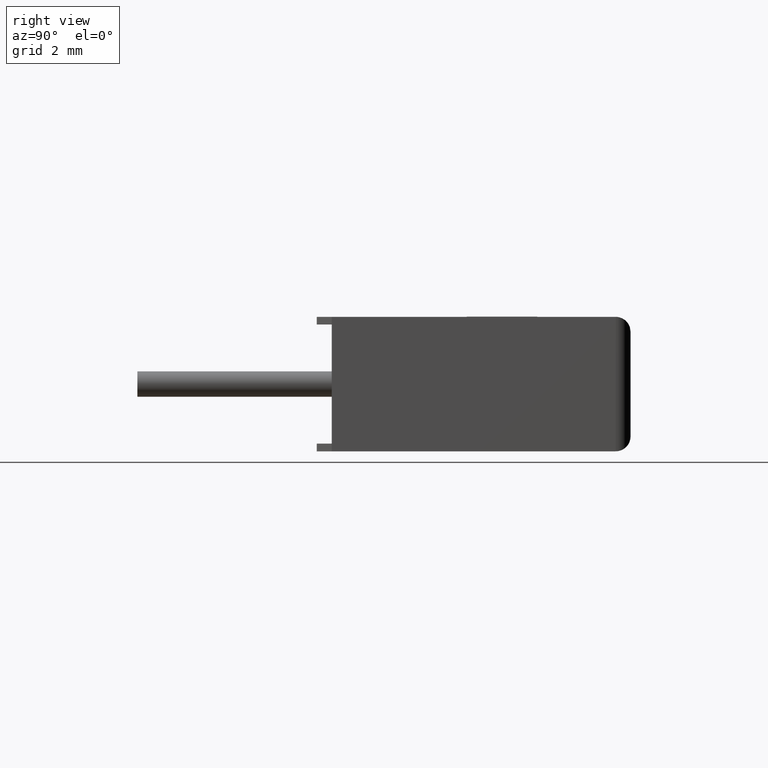
[diagram: clean part render]
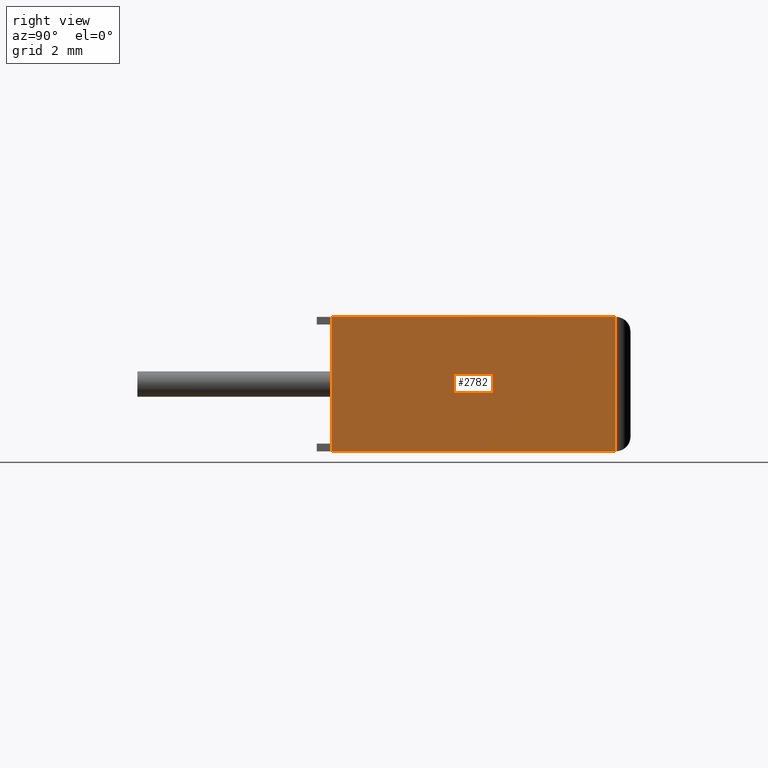
[diagram: same view with one face highlighted and labeled with its STEP entity id]
A machine part, right view. The second image highlights one B-rep face of the part: STEP entity #2782.
In plain terms, the highlighted planar face has unit normal (-1, 0, 0).
Its self-contained STEP definition (entity closure, byte-faithful):
#49 = ORIENTED_EDGE ( 'NONE', *, *, #1055, .T. ) ;
#341 = EDGE_CURVE ( 'NONE', #3063, #835, #1257, .T. ) ;
#835 = VERTEX_POINT ( 'NONE', #1243 ) ;
#851 = CARTESIAN_POINT ( 'NONE',  ( 17.50000000000000000, 0.0000000000000000000, 0.0000000000000000000 ) ) ;
#984 = LINE ( 'NONE', #2565, #3060 ) ;
#1001 = PLANE ( 'NONE',  #3171 ) ;
#1055 = EDGE_CURVE ( 'NONE', #2070, #3063, #984, .T. ) ;
#1085 = FACE_OUTER_BOUND ( 'NONE', #2307, .T. ) ;
#1107 = CARTESIAN_POINT ( 'NONE',  ( 17.50000000000000000, 0.0000000000000000000, 4.500000000000000000 ) ) ;
#1163 = LINE ( 'NONE', #1659, #2217 ) ;
#1243 = CARTESIAN_POINT ( 'NONE',  ( 17.50000000000000000, 9.500000000000000000, 4.500000000000000000 ) ) ;
#1257 = LINE ( 'NONE', #2222, #2525 ) ;
#1520 = VERTEX_POINT ( 'NONE', #1107 ) ;
#1659 = CARTESIAN_POINT ( 'NONE',  ( 17.50000000000000000, 0.0000000000000000000, 4.500000000000000000 ) ) ;
#2070 = VERTEX_POINT ( 'NONE', #851 ) ;
#2086 = DIRECTION ( 'NONE',  ( 0.0000000000000000000, 1.000000000000000000, 0.0000000000000000000 ) ) ;
#2101 = CARTESIAN_POINT ( 'NONE',  ( 17.50000000000000000, 0.0000000000000000000, 4.500000000000000000 ) ) ;
#2148 = ORIENTED_EDGE ( 'NONE', *, *, #3099, .T. ) ;
#2217 = VECTOR ( 'NONE', #2395, 1000.000000000000000 ) ;
#2222 = CARTESIAN_POINT ( 'NONE',  ( 17.50000000000000000, 9.500000000000000000, 4.500000000000000000 ) ) ;
#2307 = EDGE_LOOP ( 'NONE', ( #49, #2835, #2604, #2148 ) ) ;
#2377 = CARTESIAN_POINT ( 'NONE',  ( 17.50000000000000000, 9.500000000000000000, 0.0000000000000000000 ) ) ;
#2395 = DIRECTION ( 'NONE',  ( 0.0000000000000000000, 1.000000000000000000, 0.0000000000000000000 ) ) ;
#2403 = DIRECTION ( 'NONE',  ( -0.0000000000000000000, -0.0000000000000000000, 1.000000000000000000 ) ) ;
#2510 = DIRECTION ( 'NONE',  ( -1.000000000000000000, 0.0000000000000000000, 0.0000000000000000000 ) ) ;
#2525 = VECTOR ( 'NONE', #2403, 1000.000000000000000 ) ;
#2565 = CARTESIAN_POINT ( 'NONE',  ( 17.50000000000000000, 0.0000000000000000000, 0.0000000000000000000 ) ) ;
#2592 = EDGE_CURVE ( 'NONE', #1520, #835, #1163, .T. ) ;
#2604 = ORIENTED_EDGE ( 'NONE', *, *, #2592, .F. ) ;
#2782 = ADVANCED_FACE ( 'NONE', ( #1085 ), #1001, .F. ) ;
#2808 = DIRECTION ( 'NONE',  ( 0.0000000000000000000, 0.0000000000000000000, 1.000000000000000000 ) ) ;
#2835 = ORIENTED_EDGE ( 'NONE', *, *, #341, .T. ) ;
#2886 = VECTOR ( 'NONE', #2893, 1000.000000000000000 ) ;
#2893 = DIRECTION ( 'NONE',  ( -0.0000000000000000000, -0.0000000000000000000, -1.000000000000000000 ) ) ;
#3060 = VECTOR ( 'NONE', #2086, 1000.000000000000000 ) ;
#3063 = VERTEX_POINT ( 'NONE', #2377 ) ;
#3099 = EDGE_CURVE ( 'NONE', #1520, #2070, #3160, .T. ) ;
#3160 = LINE ( 'NONE', #2101, #2886 ) ;
#3171 = AXIS2_PLACEMENT_3D ( 'NONE', #3250, #2510, #2808 ) ;
#3250 = CARTESIAN_POINT ( 'NONE',  ( 17.50000000000000000, 0.0000000000000000000, 4.500000000000000000 ) ) ;